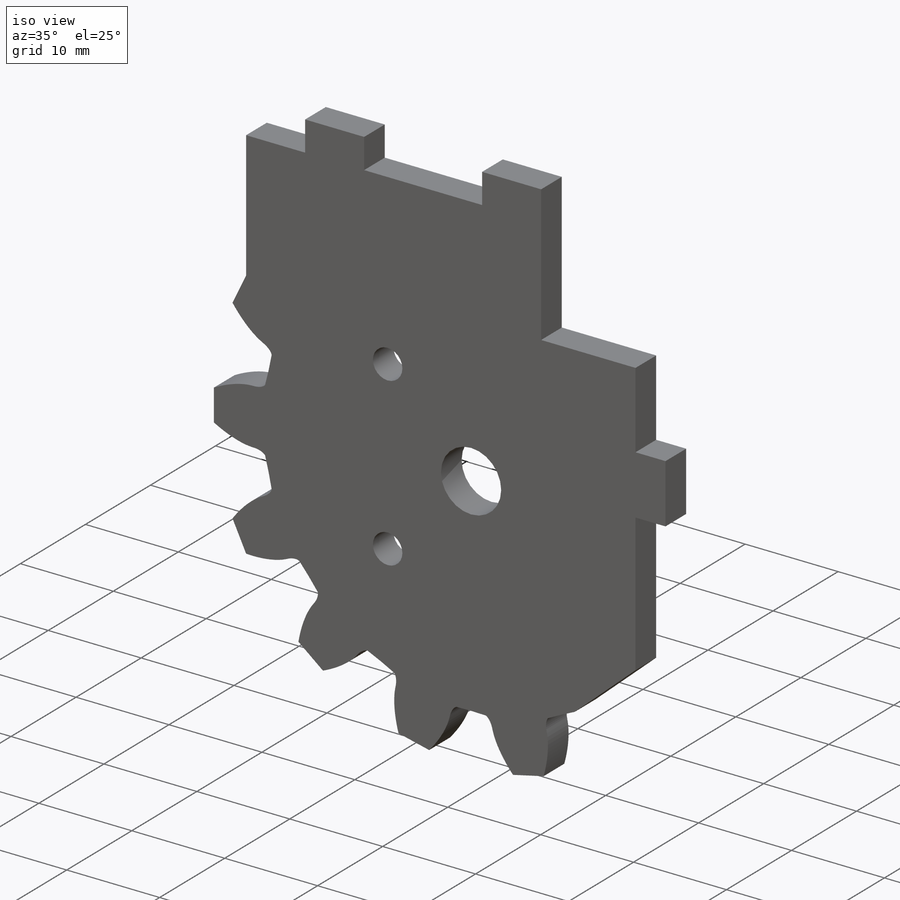
[diagram: iso view]
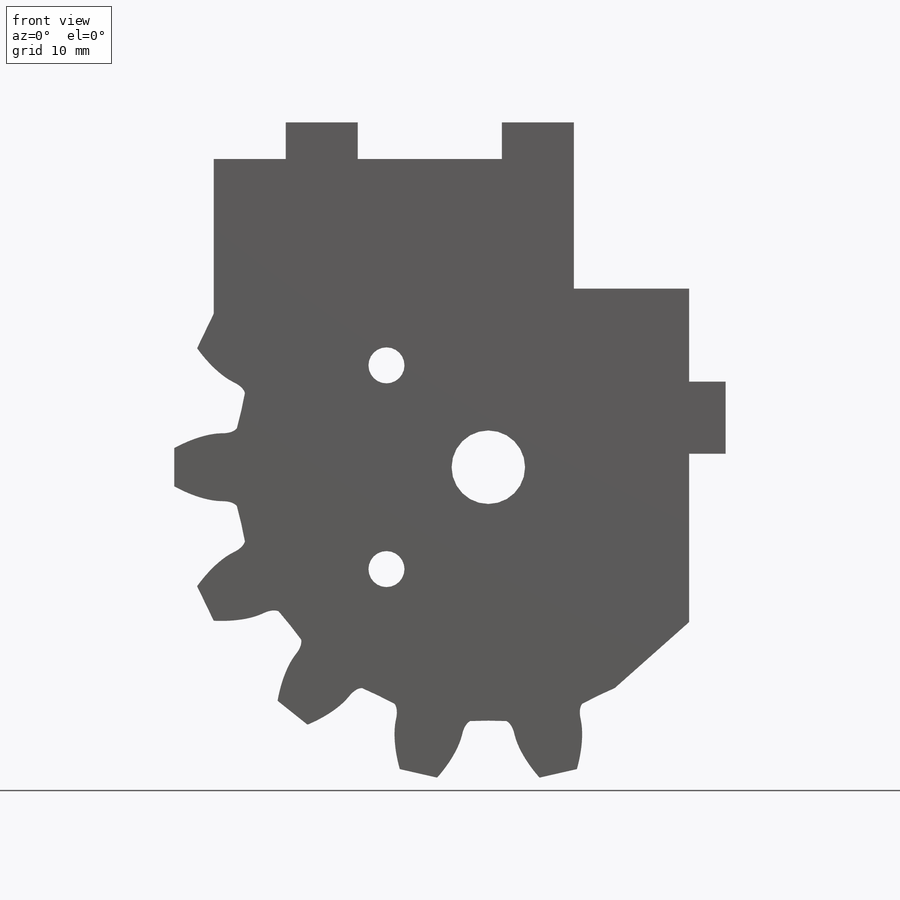
[diagram: front view]
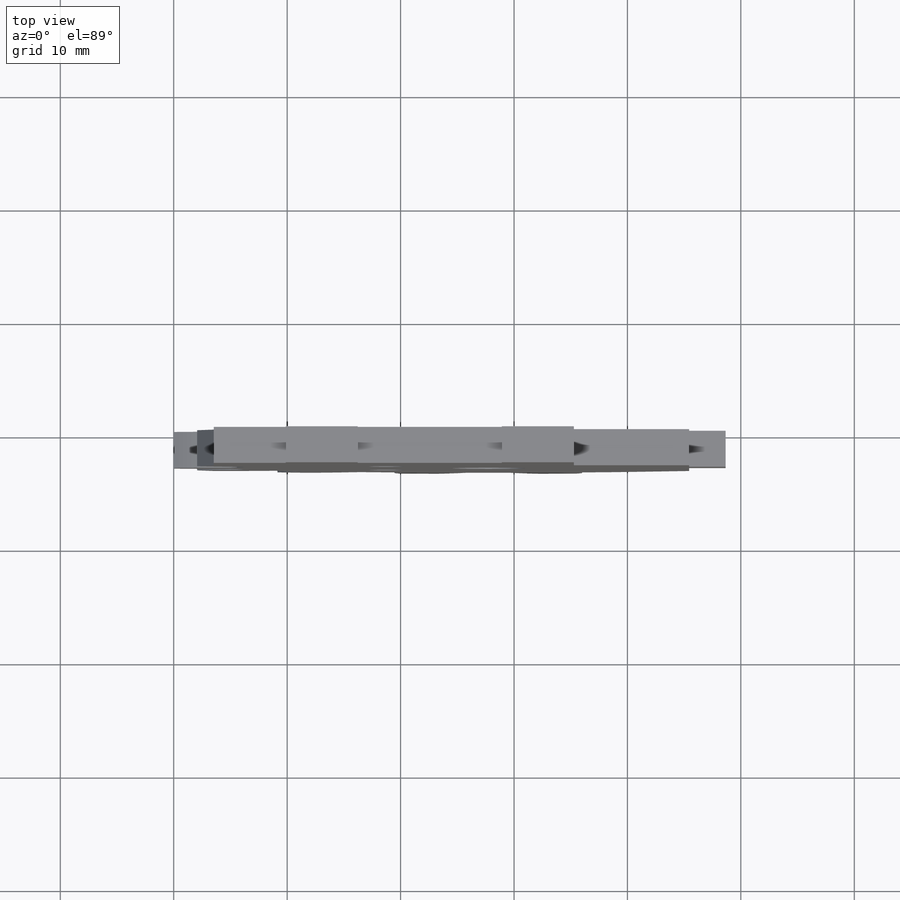
[diagram: top view]
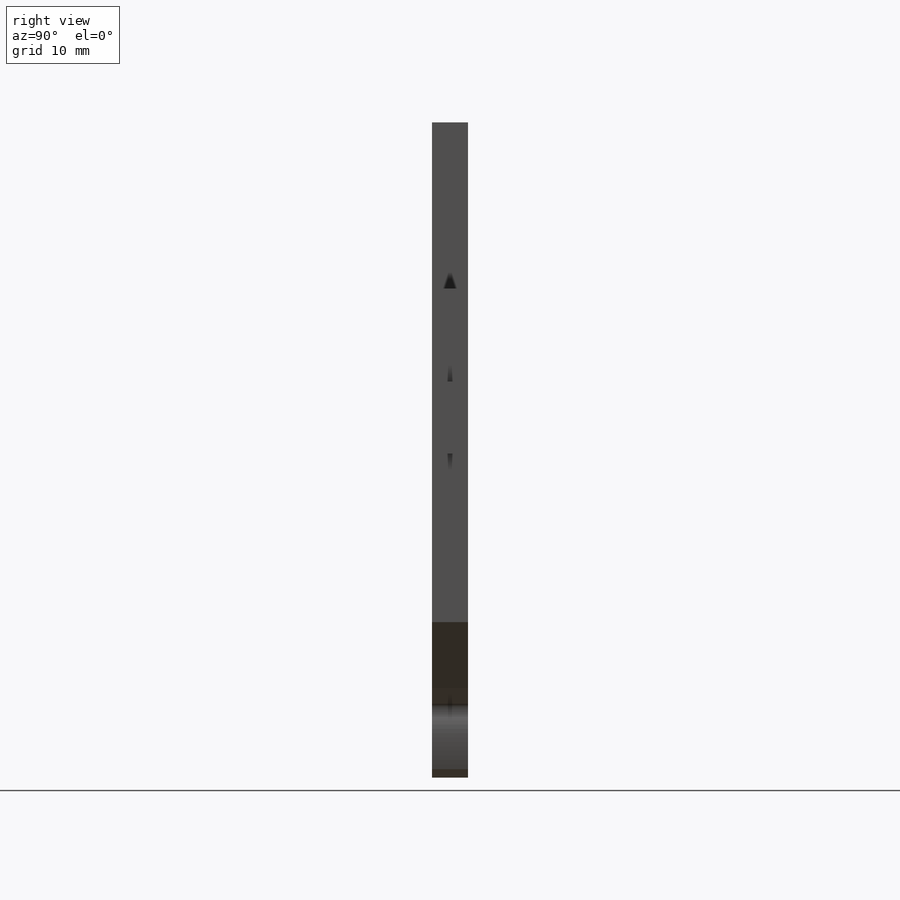
[diagram: right view]
SOLIDWORKS PART (.sldprt)
format: sldprt  version: not decoded by parser v0  size: 815,104 bytes
history: native  units: mm
features: sketch x7, cut_extrude x4, extrude x3, material x1 (+16 scaffold rows collapsed)
feature tree (31):
  scaffold x16  (default folders/planes/origin — collapsed)
  material  "Material <not specified>"
  sketch  "Sketch1"  dims[D1=6.477mm]
  extrude  "Boss-Extrude1"  Depth=3.175mm
  sketch  "Sketch2"  dims[c1.D1=26.67mm c1.D2=~42.699686mm c2.D1=27.178mm]
  extrude  "Boss-Extrude2"  Depth=3.175mm
  sketch  "Sketch3"  dims[D1=41.91mm]
  cut_extrude  "Cut-Extrude1"  [1 undecoded]
  sketch  "Sketch4"  dims[D1=10.16mm D2=25.4mm D3=30.48mm D4=11.43mm D5=10.16mm]
  cut_extrude  "Cut-Extrude2"  [1 undecoded]
  sketch  "Sketch5"  dims[D1=3.2258mm D2=6.35mm D3=6.35mm D4=3.2258mm D5=12.7mm D6=6.35mm D7=6.35mm D8=3.2258mm]
  extrude  "tabs"  Depth=3.175mm
  sketch  "Sketch6"  dims[c1.D3=6.35mm c1.D4=3.175mm c1.D5=3.175mm c1.D1=15.24mm c1.D2=15.24mm c2.D3=10.16mm c2.D1=12.7mm c2.D2=12.7mm c3.D3=~17.996129mm c4.D3=45.0deg c4.D6=~17.996129mm c5.D6=45.0deg]
  cut_extrude  "cut for binding screws"  [1 undecoded]
  sketch  "Sketch7"
  cut_extrude  "cut for clearance of spacer screw"  [1 undecoded]
decode coverage: 9 of 14 modeling features carry decoded parameters
note: ~ marks probable driven/reference dimensions
note: 4 parameter values undecoded
summary: no parameter record found for 4 features
note: suppression state not decoded; provenance and decode notes live in map.json
